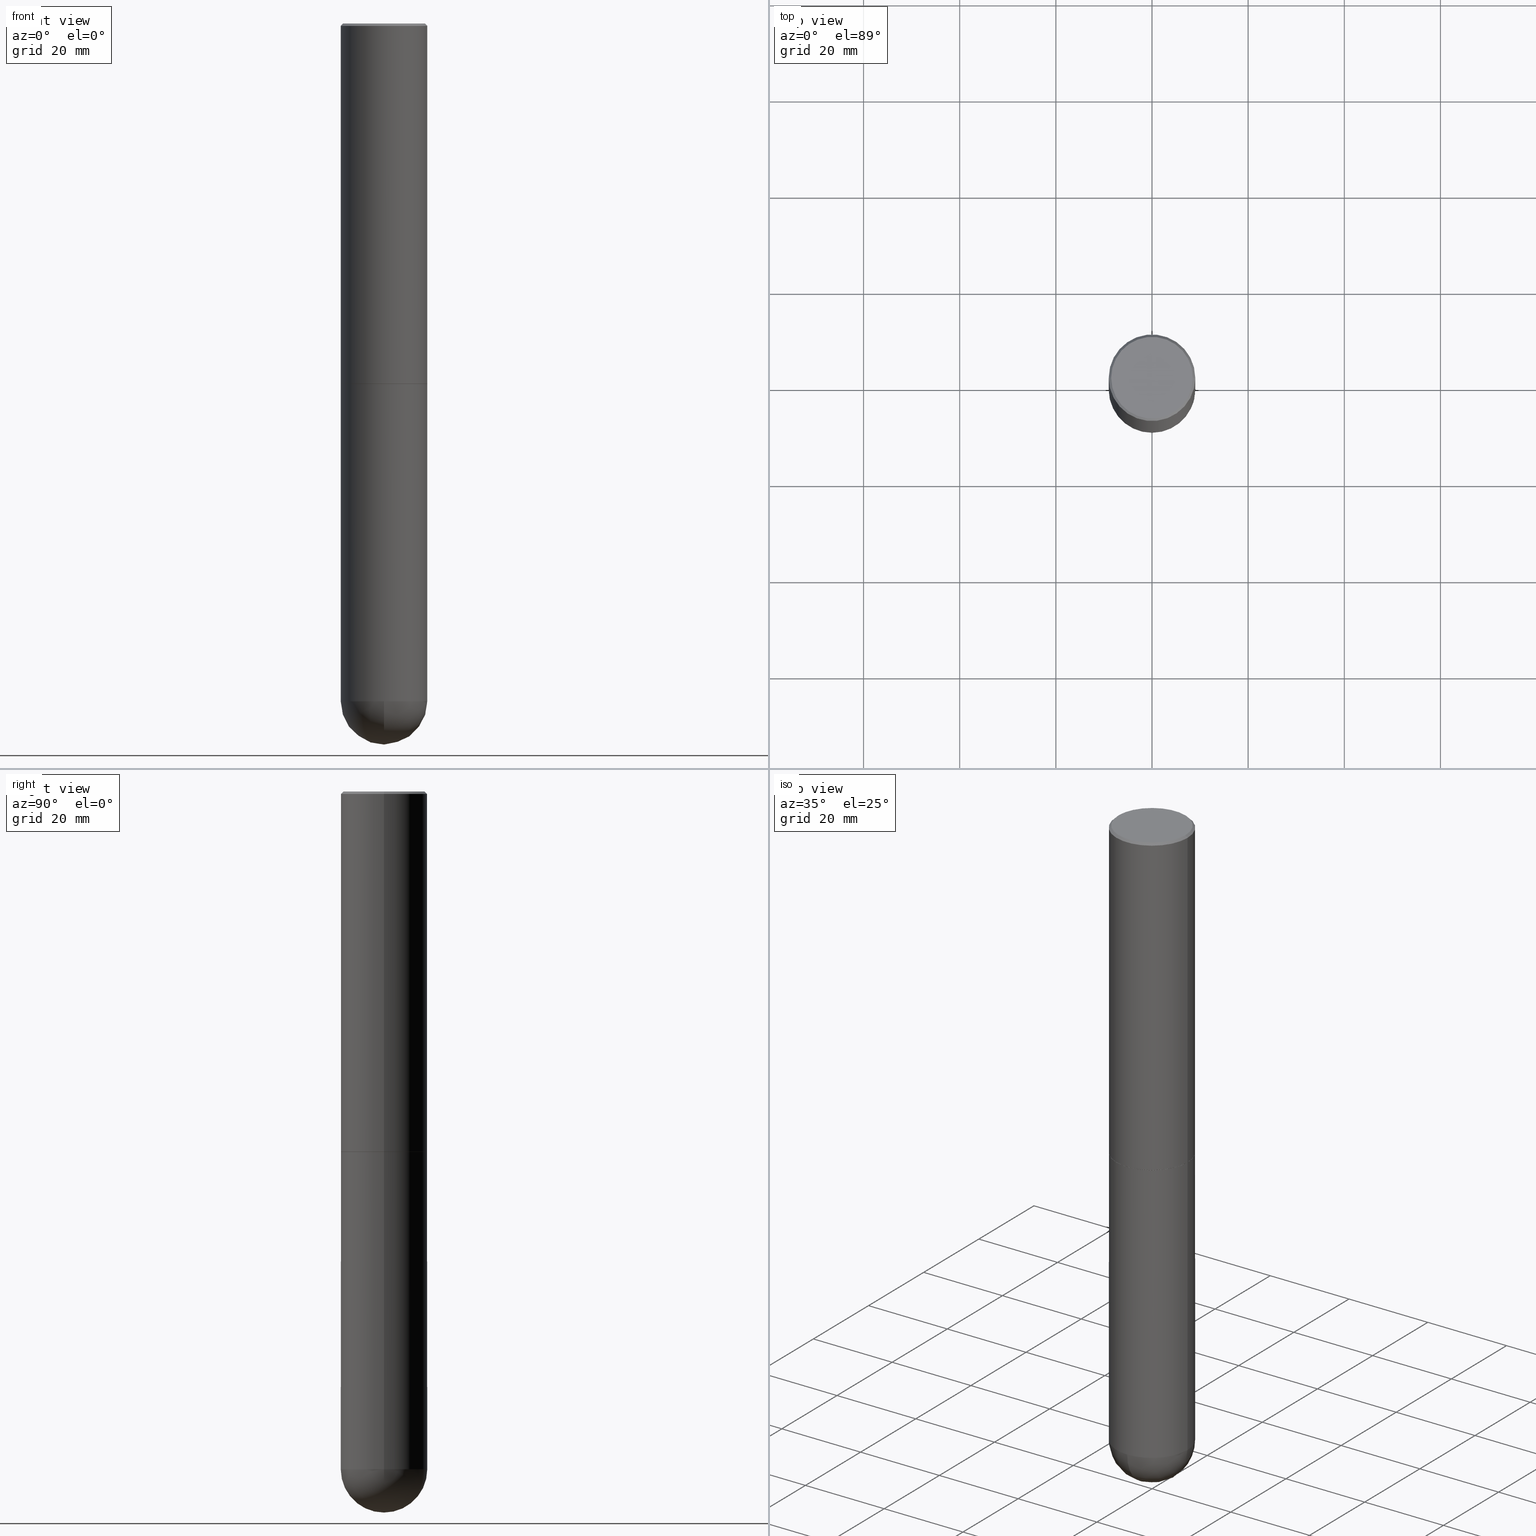
[diagram: canonical four-view strip — front | top / right | iso, engineering-drawing reading convention]
A machine part, canonical four-view strip (front | top / right | iso — engineering-drawing reading convention). The complete STEP part file that produces these views, byte-faithful:
ISO-10303-21;
HEADER;
FILE_DESCRIPTION (( 'STEP AP203' ),
    '1' );
FILE_NAME ('43576.STEP',
    '2024-04-10T11:44:28',
    ( '' ),
    ( '' ),
    'SwSTEP 2.0',
    'SolidWorks 2023',
    '' );
FILE_SCHEMA (( 'CONFIG_CONTROL_DESIGN' ));
ENDSEC;

DATA;
#1 = DIRECTION ( 'NONE',  ( 1.000000000000000000, -6.982962677686267499E-15, 0.000000000000000000 ) ) ;
#2 = PERSON ( 'UNSPECIFIED', 'UNSPECIFIED', 'UNSPECIFIED', ('UNSPECIFIED'), ('UNSPECIFIED'), ('UNSPECIFIED') ) ;
#3 = DIRECTION ( 'NONE',  ( -2.445468806185136597E-29, 3.491481338843145583E-15, 1.000000000000000000 ) ) ;
#4 = LINE ( 'NONE', #139, #360 ) ;
#5 = SPHERICAL_SURFACE ( 'NONE', #59, 0.3543500000000002204 ) ;
#6 = DATE_AND_TIME ( #383, #338 ) ;
#7 = EDGE_LOOP ( 'NONE', ( #183, #77, #286, #282 ) ) ;
#8 = DIRECTION ( 'NONE',  ( -2.445468806185136597E-29, 3.491481338843145583E-15, 1.000000000000000000 ) ) ;
#9 = DIRECTION ( 'NONE',  ( -2.445468806185136597E-29, 3.491481338843145583E-15, 1.000000000000000000 ) ) ;
#10 = EDGE_CURVE ( 'NONE', #167, #61, #248, .T. ) ;
#11 = CLOSED_SHELL ( 'NONE', ( #305, #307, #117, #19, #82, #306, #353, #162 ) ) ;
#12 = AXIS2_PLACEMENT_3D ( 'NONE', #386, #255, #37 ) ;
#13 = CARTESIAN_POINT ( 'NONE',  ( -0.3343499999999999250, 2.369668384672834141E-15, 2.561107494058601869E-17 ) ) ;
#14 = LINE ( 'NONE', #73, #309 ) ;
#15 = APPROVAL_STATUS ( 'not_yet_approved' ) ;
#16 = CARTESIAN_POINT ( 'NONE',  ( 0.3543499999999999983, -2.500847092287205690E-15, -0.02000000000000008021 ) ) ;
#17 = EDGE_LOOP ( 'NONE', ( #172, #235, #113, #323 ) ) ;
#18 = ORIENTED_EDGE ( 'NONE', *, *, #241, .T. ) ;
#19 = ADVANCED_FACE ( 'NONE', ( #251 ), #180, .T. ) ;
#20 = DIRECTION ( 'NONE',  ( -2.445468806185136597E-29, 3.491481338843145583E-15, 1.000000000000000000 ) ) ;
#21 = VECTOR ( 'NONE', #300, 39.37007874015748143 ) ;
#22 = ORIENTED_EDGE ( 'NONE', *, *, #83, .T. ) ;
#23 = EDGE_LOOP ( 'NONE', ( #239, #358 ) ) ;
#24 = EDGE_CURVE ( 'NONE', #276, #384, #407, .T. ) ;
#25 = AXIS2_PLACEMENT_3D ( 'NONE', #266, #3, #240 ) ;
#26 = PRODUCT_DEFINITION_FORMATION_WITH_SPECIFIED_SOURCE ( 'ANY', '', #318, .NOT_KNOWN. ) ;
#27 = PERSON_AND_ORGANIZATION ( #2, #118 ) ;
#28 = CIRCLE ( 'NONE', #337, 0.3533499999999999974 ) ;
#29 = CARTESIAN_POINT ( 'NONE',  ( 7.220735744022853640E-29, -1.030929694920215659E-14, -2.952700000000000546 ) ) ;
#30 = CARTESIAN_POINT ( 'NONE',  ( 2.474412824838200480E-15, 0.3543499999999896732, -2.952700000000000990 ) ) ;
#31 = EDGE_LOOP ( 'NONE', ( #18, #308, #124, #380, #412 ) ) ;
#32 = DIRECTION ( 'NONE',  ( -7.105427357601001070E-15, -1.000000000000000000, 0.000000000000000000 ) ) ;
#33 = DIRECTION ( 'NONE',  ( -1.000000000000000000, 6.982962677686266711E-15, 0.000000000000000000 ) ) ;
#34 = FACE_OUTER_BOUND ( 'NONE', #296, .T. ) ;
#35 = CIRCLE ( 'NONE', #75, 0.3543499999999999428 ) ;
#36 = CIRCLE ( 'NONE', #271, 0.3543499999999999428 ) ;
#37 = DIRECTION ( 'NONE',  ( 1.000000000000000000, -6.982962677686266711E-15, 4.876176775795935793E-29 ) ) ;
#38 = CARTESIAN_POINT ( 'NONE',  ( 0.3533499999999999974, -1.277672681136259888E-14, -2.952700000000000546 ) ) ;
#39 = DIRECTION ( 'NONE',  ( -2.445468806185136597E-29, 3.491481338843145583E-15, 1.000000000000000000 ) ) ;
#40 = DIRECTION ( 'NONE',  ( -2.445468806185136597E-29, 3.491481338843145583E-15, 1.000000000000000000 ) ) ;
#41 = CARTESIAN_POINT ( 'NONE',  ( -0.3543499999999999983, 2.404583198061265396E-15, -0.02000000000000008021 ) ) ;
#42 = VERTEX_POINT ( 'NONE', #93 ) ;
#43 = CC_DESIGN_DATE_AND_TIME_ASSIGNMENT ( #116, #79, ( #198 ) ) ;
#44 = APPROVAL_DATE_TIME ( #6, #352 ) ;
#45 = CARTESIAN_POINT ( 'NONE',  ( 1.357516416345461774E-28, -1.938173663411912545E-14, -5.551149999999999807 ) ) ;
#46 = AXIS2_PLACEMENT_3D ( 'NONE', #127, #178, #32 ) ;
#47 = FACE_OUTER_BOUND ( 'NONE', #357, .T. ) ;
#48 = EDGE_LOOP ( 'NONE', ( #314, #382, #149, #51 ) ) ;
#49 = ORIENTED_EDGE ( 'NONE', *, *, #83, .F. ) ;
#50 = EDGE_CURVE ( 'NONE', #292, #328, #52, .T. ) ;
#51 = ORIENTED_EDGE ( 'NONE', *, *, #112, .T. ) ;
#52 = CIRCLE ( 'NONE', #244, 0.3343499999999999250 ) ;
#53 = AXIS2_PLACEMENT_3D ( 'NONE', #109, #321, #389 ) ;
#54 = EDGE_CURVE ( 'NONE', #167, #179, #28, .T. ) ;
#55 = VERTEX_POINT ( 'NONE', #374 ) ;
#56 = EDGE_CURVE ( 'NONE', #292, #339, #99, .T. ) ;
#57 =( LENGTH_UNIT ( ) NAMED_UNIT ( * ) SI_UNIT ( $, .METRE. ) );
#58 = EDGE_LOOP ( 'NONE', ( #404, #262, #140, #299 ) ) ;
#59 = AXIS2_PLACEMENT_3D ( 'NONE', #279, #344, #60 ) ;
#60 = DIRECTION ( 'NONE',  ( 6.982962677686265922E-15, 1.000000000000000000, -3.083784951222533328E-15 ) ) ;
#61 = VERTEX_POINT ( 'NONE', #320 ) ;
#62 = VERTEX_POINT ( 'NONE', #128 ) ;
#63 = APPROVAL ( #208, 'UNSPECIFIED' ) ;
#64 =( CONVERSION_BASED_UNIT ( 'INCH', #129 ) LENGTH_UNIT ( ) NAMED_UNIT ( #249 ) );
#65 = ORIENTED_EDGE ( 'NONE', *, *, #272, .T. ) ;
#66 =( NAMED_UNIT ( * ) PLANE_ANGLE_UNIT ( ) SI_UNIT ( $, .RADIAN. ) );
#67 = DIRECTION ( 'NONE',  ( 2.445468806185136597E-29, -3.491481338843145583E-15, -1.000000000000000000 ) ) ;
#68 = CIRCLE ( 'NONE', #25, 0.3543499999999999983 ) ;
#69 = EDGE_CURVE ( 'NONE', #62, #61, #150, .T. ) ;
#70 = EDGE_CURVE ( 'NONE', #280, #219, #35, .T. ) ;
#71 = LINE ( 'NONE', #351, #88 ) ;
#72 = CARTESIAN_POINT ( 'NONE',  ( -0.3543499999999999428, -1.232770860749472642E-14, -5.551149999999999807 ) ) ;
#73 = CARTESIAN_POINT ( 'NONE',  ( 0.3543499999999999983, -2.474412824838128694E-15, 1.727873240503289749E-29 ) ) ;
#74 = CARTESIAN_POINT ( 'NONE',  ( 4.890937612370293302E-31, -6.982962677686318726E-17, -0.02000000000000008021 ) ) ;
#75 = AXIS2_PLACEMENT_3D ( 'NONE', #302, #20, #392 ) ;
#76 = CARTESIAN_POINT ( 'NONE',  ( 1.357516416345461774E-28, -1.938173663411912545E-14, -5.551149999999999807 ) ) ;
#77 = ORIENTED_EDGE ( 'NONE', *, *, #146, .T. ) ;
#78 = ORIENTED_EDGE ( 'NONE', *, *, #69, .T. ) ;
#79 = DATE_TIME_ROLE ( 'creation_date' ) ;
#80 = ORIENTED_EDGE ( 'NONE', *, *, #54, .T. ) ;
#81 = EDGE_CURVE ( 'NONE', #324, #55, #114, .T. ) ;
#82 = ADVANCED_FACE ( 'NONE', ( #237 ), #270, .T. ) ;
#83 = EDGE_CURVE ( 'NONE', #62, #42, #4, .T. ) ;
#84 = CC_DESIGN_PERSON_AND_ORGANIZATION_ASSIGNMENT ( #27, #403, ( #26 ) ) ;
#85 = SHAPE_DEFINITION_REPRESENTATION ( #379, #212 ) ;
#86 = PERSON_AND_ORGANIZATION_ROLE ( 'design_supplier' ) ;
#87 = AXIS2_PLACEMENT_3D ( 'NONE', #229, #354, #349 ) ;
#88 = VECTOR ( 'NONE', #298, 39.37007874015748143 ) ;
#89 = COORDINATED_UNIVERSAL_TIME_OFFSET ( 5, 0, .BEHIND. ) ;
#90 = DIRECTION ( 'NONE',  ( 1.000000000000000000, -6.982962677686265922E-15, 4.876176775795935793E-29 ) ) ;
#91 = DIRECTION ( 'NONE',  ( -2.445468806185136597E-29, 3.491481338843145583E-15, 1.000000000000000000 ) ) ;
#92 = FACE_OUTER_BOUND ( 'NONE', #7, .T. ) ;
#93 = CARTESIAN_POINT ( 'NONE',  ( 0.3543499999999999983, -2.500847092287205690E-15, -0.02000000000000008021 ) ) ;
#94 = DIRECTION ( 'NONE',  ( -2.445468806185136877E-29, 3.491481338843145188E-15, 1.000000000000000000 ) ) ;
#95 = APPROVAL_STATUS ( 'not_yet_approved' ) ;
#96 = AXIS2_PLACEMENT_3D ( 'NONE', #160, #102, #230 ) ;
#97 = ORIENTED_EDGE ( 'NONE', *, *, #10, .F. ) ;
#98 = CARTESIAN_POINT ( 'NONE',  ( 7.220735744022853640E-29, -1.030929694920215659E-14, -2.952700000000000546 ) ) ;
#99 = LINE ( 'NONE', #228, #147 ) ;
#100 = LINE ( 'NONE', #16, #21 ) ;
#101 = SPHERICAL_SURFACE ( 'NONE', #87, 0.3543500000000002204 ) ;
#102 = DIRECTION ( 'NONE',  ( -2.445468806185136597E-29, 3.491481338843145583E-15, 1.000000000000000000 ) ) ;
#103 = DIRECTION ( 'NONE',  ( -2.445468806185136597E-29, 3.491481338843145583E-15, 1.000000000000000000 ) ) ;
#104 = APPLICATION_CONTEXT ( 'configuration controlled 3d designs of mechanical parts and assemblies' ) ;
#105 = DIRECTION ( 'NONE',  ( -2.438088387897960049E-29, 3.491481338843145188E-15, 1.000000000000000000 ) ) ;
#106 = ORIENTED_EDGE ( 'NONE', *, *, #215, .T. ) ;
#107 = DIRECTION ( 'NONE',  ( 1.000000000000000000, -6.982962677686261189E-15, 0.000000000000000000 ) ) ;
#108 = DIRECTION ( 'NONE',  ( 6.982962677686265133E-15, 1.000000000000000000, 0.000000000000000000 ) ) ;
#109 = CARTESIAN_POINT ( 'NONE',  ( 0.000000000000000000, 0.000000000000000000, 0.000000000000000000 ) ) ;
#110 = DIRECTION ( 'NONE',  ( 1.000000000000000000, -6.982962677686267499E-15, 0.000000000000000000 ) ) ;
#111 = CARTESIAN_POINT ( 'NONE',  ( -2.517808184165781285E-15, -0.3543500000000196493, -5.551149999999998919 ) ) ;
#112 = EDGE_CURVE ( 'NONE', #339, #42, #361, .T. ) ;
#113 = ORIENTED_EDGE ( 'NONE', *, *, #69, .F. ) ;
#114 = CIRCLE ( 'NONE', #254, 0.3543500000000002204 ) ;
#115 =( GEOMETRIC_REPRESENTATION_CONTEXT ( 3 ) GLOBAL_UNCERTAINTY_ASSIGNED_CONTEXT ( ( #166 ) ) GLOBAL_UNIT_ASSIGNED_CONTEXT ( ( #64, #66, #137 ) ) REPRESENTATION_CONTEXT ( 'NONE', 'WORKASPACE' ) );
#116 = DATE_AND_TIME ( #316, #242 ) ;
#117 = ADVANCED_FACE ( 'NONE', ( #122 ), #317, .T. ) ;
#118 = ORGANIZATION ( 'UNSPECIFIED', 'UNSPECIFIED', '' ) ;
#119 = DATE_AND_TIME ( #277, #362 ) ;
#120 = AXIS2_PLACEMENT_3D ( 'NONE', #261, #387, #144 ) ;
#121 = APPROVAL_PERSON_ORGANIZATION ( #207, #63, #363 ) ;
#122 = FACE_OUTER_BOUND ( 'NONE', #58, .T. ) ;
#123 = FACE_OUTER_BOUND ( 'NONE', #23, .T. ) ;
#124 = ORIENTED_EDGE ( 'NONE', *, *, #24, .F. ) ;
#125 = APPROVAL ( #95, 'UNSPECIFIED' ) ;
#126 = PERSON_AND_ORGANIZATION ( #2, #118 ) ;
#127 = CARTESIAN_POINT ( 'NONE',  ( 1.324404438554073486E-28, -1.985591900225917417E-14, -5.551149999999999807 ) ) ;
#128 = CARTESIAN_POINT ( 'NONE',  ( 0.3543500000000004424, -1.278021829270144662E-14, -2.951700000000000212 ) ) ;
#129 = LENGTH_MEASURE_WITH_UNIT ( LENGTH_MEASURE( 0.02539999999999999897 ), #57 );
#130 = VERTEX_POINT ( 'NONE', #217 ) ;
#131 = PERSON_AND_ORGANIZATION ( #2, #118 ) ;
#132 = DIRECTION ( 'NONE',  ( -2.445468806185136877E-29, 3.491481338843145188E-15, 1.000000000000000000 ) ) ;
#133 = VECTOR ( 'NONE', #94, 39.37007874015748143 ) ;
#134 = CARTESIAN_POINT ( 'NONE',  ( 7.220735744022853640E-29, -1.030929694920215659E-14, -2.952700000000000546 ) ) ;
#135 = DIRECTION ( 'NONE',  ( -2.445468806185136597E-29, 3.491481338843145583E-15, 1.000000000000000000 ) ) ;
#136 = CC_DESIGN_DATE_AND_TIME_ASSIGNMENT ( #334, #369, ( #275 ) ) ;
#137 =( NAMED_UNIT ( * ) SI_UNIT ( $, .STERADIAN. ) SOLID_ANGLE_UNIT ( ) );
#138 = DIRECTION ( 'NONE',  ( -0.7071067811865715536, 7.493145998870439357E-15, 0.7071067811865232589 ) ) ;
#139 = CARTESIAN_POINT ( 'NONE',  ( 0.3543500000000002204, -2.474412824838130272E-15, 1.727873240503290870E-29 ) ) ;
#140 = ORIENTED_EDGE ( 'NONE', *, *, #187, .T. ) ;
#141 = CIRCLE ( 'NONE', #304, 0.3543499999999999983 ) ;
#142 = PERSON_AND_ORGANIZATION ( #2, #118 ) ;
#143 = ORIENTED_EDGE ( 'NONE', *, *, #215, .F. ) ;
#144 = DIRECTION ( 'NONE',  ( 1.000000000000000000, -6.982962677686261189E-15, 0.000000000000000000 ) ) ;
#145 = COORDINATED_UNIVERSAL_TIME_OFFSET ( 5, 0, .BEHIND. ) ;
#146 = EDGE_CURVE ( 'NONE', #324, #219, #246, .T. ) ;
#147 = VECTOR ( 'NONE', #345, 39.37007874015748143 ) ;
#148 = PRODUCT_RELATED_PRODUCT_CATEGORY ( 'detail', '', ( #318 ) ) ;
#149 = ORIENTED_EDGE ( 'NONE', *, *, #56, .T. ) ;
#150 = CIRCLE ( 'NONE', #213, 0.3543500000000004424 ) ;
#151 = EDGE_CURVE ( 'NONE', #179, #167, #274, .T. ) ;
#152 = CARTESIAN_POINT ( 'NONE',  ( 4.890937612370293302E-31, -6.982962677686318726E-17, -0.02000000000000008021 ) ) ;
#153 = APPROVAL_DATE_TIME ( #119, #63 ) ;
#154 = CIRCLE ( 'NONE', #206, 0.3343499999999999250 ) ;
#155 = DIRECTION ( 'NONE',  ( 1.000000000000000000, -6.982962677686266711E-15, 4.876176775795935793E-29 ) ) ;
#156 = DIRECTION ( 'NONE',  ( 1.000000000000000000, -6.982962677686267499E-15, 4.875777752381879149E-29 ) ) ;
#157 = APPROVAL_DATE_TIME ( #158, #125 ) ;
#158 = DATE_AND_TIME ( #340, #202 ) ;
#159 = CARTESIAN_POINT ( 'NONE',  ( -0.3543499999999999983, -1.232770860749472484E-14, -2.952700000000000102 ) ) ;
#160 = CARTESIAN_POINT ( 'NONE',  ( 7.220735744022852519E-29, -1.030929694920215502E-14, -2.952700000000000102 ) ) ;
#161 = APPLICATION_PROTOCOL_DEFINITION ( 'international standard', 'config_control_design', 1994, #104 ) ;
#162 = ADVANCED_FACE ( 'NONE', ( #123 ), #341, .F. ) ;
#163 = COORDINATED_UNIVERSAL_TIME_OFFSET ( 5, 0, .BEHIND. ) ;
#164 = DIRECTION ( 'NONE',  ( -2.445468806185136597E-29, 3.491481338843145583E-15, 1.000000000000000000 ) ) ;
#165 = ORIENTED_EDGE ( 'NONE', *, *, #81, .T. ) ;
#166 = UNCERTAINTY_MEASURE_WITH_UNIT (LENGTH_MEASURE( 1.000000000000000082E-05 ), #64, 'distance_accuracy_value', 'NONE');
#167 = VERTEX_POINT ( 'NONE', #227 ) ;
#168 = CARTESIAN_POINT ( 'NONE',  ( 1.324404438554073486E-28, -1.985591900225917417E-14, -5.551149999999999807 ) ) ;
#169 = CC_DESIGN_APPROVAL ( #352, ( #198 ) ) ;
#170 = PLANE ( 'NONE',  #214 ) ;
#171 = ADVANCED_FACE ( 'NONE', ( #377 ), #101, .T. ) ;
#172 = ORIENTED_EDGE ( 'NONE', *, *, #151, .T. ) ;
#173 = CIRCLE ( 'NONE', #231, 0.3543500000000004424 ) ;
#174 = ORIENTED_EDGE ( 'NONE', *, *, #211, .T. ) ;
#175 = EDGE_CURVE ( 'NONE', #179, #62, #347, .T. ) ;
#176 = VECTOR ( 'NONE', #138, 39.37007874015748854 ) ;
#177 = APPROVAL_PERSON_ORGANIZATION ( #285, #352, #293 ) ;
#178 = DIRECTION ( 'NONE',  ( -1.000000000000000000, 7.105427357601001070E-15, -4.926315508542082329E-29 ) ) ;
#179 = VERTEX_POINT ( 'NONE', #203 ) ;
#180 = CONICAL_SURFACE ( 'NONE', #269, 0.3543499999999999983, 0.7853981633974471688 ) ;
#181 = AXIS2_PLACEMENT_3D ( 'NONE', #98, #290, #1 ) ;
#182 = CARTESIAN_POINT ( 'NONE',  ( 2.334753571284402492E-15, 0.3343499999999999250, -1.154571248171904305E-15 ) ) ;
#183 = ORIENTED_EDGE ( 'NONE', *, *, #81, .F. ) ;
#184 = CARTESIAN_POINT ( 'NONE',  ( 7.220735744022852519E-29, -1.030929694920215502E-14, -2.952700000000000102 ) ) ;
#185 = DIRECTION ( 'NONE',  ( 1.000000000000000000, -6.982962677686267499E-15, 0.000000000000000000 ) ) ;
#186 = COORDINATED_UNIVERSAL_TIME_OFFSET ( 5, 0, .BEHIND. ) ;
#187 = EDGE_CURVE ( 'NONE', #42, #339, #68, .T. ) ;
#188 = AXIS2_PLACEMENT_3D ( 'NONE', #152, #364, #223 ) ;
#189 = AXIS2_PLACEMENT_3D ( 'NONE', #226, #135, #376 ) ;
#190 = AXIS2_PLACEMENT_3D ( 'NONE', #197, #297, #110 ) ;
#191 = PERSON_AND_ORGANIZATION ( #2, #118 ) ;
#192 = ORIENTED_EDGE ( 'NONE', *, *, #151, .F. ) ;
#193 = DIRECTION ( 'NONE',  ( 1.000000000000000000, -6.982962677686267499E-15, 4.875777752381879149E-29 ) ) ;
#194 = MECHANICAL_CONTEXT ( 'NONE', #260, 'mechanical' ) ;
#195 = ORIENTED_EDGE ( 'NONE', *, *, #70, .T. ) ;
#196 = MANIFOLD_SOLID_BREP ( 'Body-Move/Copy2[1]', #385 ) ;
#197 = CARTESIAN_POINT ( 'NONE',  ( 7.220735744022853640E-29, -1.030929694920215659E-14, -2.952700000000000546 ) ) ;
#198 = PRODUCT_DEFINITION ( 'UNKNOWN', '', #26, #209 ) ;
#199 = PERSON_AND_ORGANIZATION_ROLE ( 'design_owner' ) ;
#200 = CARTESIAN_POINT ( 'NONE',  ( 0.3343499999999999250, -2.397327298921058709E-15, 2.561107494061901218E-17 ) ) ;
#201 = ORIENTED_EDGE ( 'NONE', *, *, #291, .F. ) ;
#202 = LOCAL_TIME ( 7, 44, 28.00000000000000000, #220 ) ;
#203 = CARTESIAN_POINT ( 'NONE',  ( 0.3533499999999999974, -1.277672681136259888E-14, -2.952700000000000546 ) ) ;
#204 = ORIENTED_EDGE ( 'NONE', *, *, #268, .F. ) ;
#205 = CC_DESIGN_PERSON_AND_ORGANIZATION_ASSIGNMENT ( #142, #346, ( #198 ) ) ;
#206 = AXIS2_PLACEMENT_3D ( 'NONE', #325, #381, #193 ) ;
#207 = PERSON_AND_ORGANIZATION ( #2, #118 ) ;
#208 = APPROVAL_STATUS ( 'not_yet_approved' ) ;
#209 = DESIGN_CONTEXT ( 'detailed design', #104, 'design' ) ;
#210 = CC_DESIGN_PERSON_AND_ORGANIZATION_ASSIGNMENT ( #405, #250, ( #275 ) ) ;
#211 = EDGE_CURVE ( 'NONE', #219, #130, #303, .T. ) ;
#212 = ADVANCED_BREP_SHAPE_REPRESENTATION ( '43576', ( #196, #329, #53 ), #115 ) ;
#213 = AXIS2_PLACEMENT_3D ( 'NONE', #411, #164, #243 ) ;
#214 = AXIS2_PLACEMENT_3D ( 'NONE', #30, #224, #322 ) ;
#215 = EDGE_CURVE ( 'NONE', #61, #62, #173, .T. ) ;
#216 = CALENDAR_DATE ( 2024, 10, 4 ) ;
#217 = CARTESIAN_POINT ( 'NONE',  ( 0.3543499999999999428, -1.731992961649876932E-14, -5.551149999999999807 ) ) ;
#218 = EDGE_LOOP ( 'NONE', ( #396, #195, #174, #350, #201 ) ) ;
#219 = VERTEX_POINT ( 'NONE', #111 ) ;
#220 = COORDINATED_UNIVERSAL_TIME_OFFSET ( 5, 0, .BEHIND. ) ;
#221 = AXIS2_PLACEMENT_3D ( 'NONE', #74, #91, #278 ) ;
#222 = LOCAL_TIME ( 7, 44, 28.00000000000000000, #89 ) ;
#223 = DIRECTION ( 'NONE',  ( -1.000000000000000000, 6.982962677686266711E-15, 0.000000000000000000 ) ) ;
#224 = DIRECTION ( 'NONE',  ( 2.438088387897960049E-29, -3.491481338843145188E-15, -1.000000000000000000 ) ) ;
#225 = ORIENTED_EDGE ( 'NONE', *, *, #112, .F. ) ;
#226 = CARTESIAN_POINT ( 'NONE',  ( 0.000000000000000000, 0.000000000000000000, 0.000000000000000000 ) ) ;
#227 = CARTESIAN_POINT ( 'NONE',  ( -0.3533499999999999974, -7.793295738045619809E-15, -2.952700000000000546 ) ) ;
#228 = CARTESIAN_POINT ( 'NONE',  ( -0.3543499999999999983, 2.404583198061265396E-15, -0.02000000000000008021 ) ) ;
#229 = CARTESIAN_POINT ( 'NONE',  ( 1.324404438554073486E-28, -1.985591900225917417E-14, -5.551149999999999807 ) ) ;
#230 = DIRECTION ( 'NONE',  ( 1.000000000000000000, -6.982962677686265922E-15, 0.000000000000000000 ) ) ;
#231 = AXIS2_PLACEMENT_3D ( 'NONE', #294, #395, #356 ) ;
#232 = AXIS2_PLACEMENT_3D ( 'NONE', #366, #40, #155 ) ;
#233 = DIRECTION ( 'NONE',  ( 1.000000000000000000, -6.982962677686261189E-15, 0.000000000000000000 ) ) ;
#234 = ORIENTED_EDGE ( 'NONE', *, *, #272, .F. ) ;
#235 = ORIENTED_EDGE ( 'NONE', *, *, #10, .T. ) ;
#236 = EDGE_CURVE ( 'NONE', #328, #292, #154, .T. ) ;
#237 = FACE_OUTER_BOUND ( 'NONE', #252, .T. ) ;
#238 = FACE_OUTER_BOUND ( 'NONE', #257, .T. ) ;
#239 = ORIENTED_EDGE ( 'NONE', *, *, #50, .T. ) ;
#240 = DIRECTION ( 'NONE',  ( 1.000000000000000000, -6.982962677686266711E-15, 0.000000000000000000 ) ) ;
#241 = EDGE_CURVE ( 'NONE', #55, #280, #36, .T. ) ;
#242 = LOCAL_TIME ( 7, 44, 28.00000000000000000, #186 ) ;
#243 = DIRECTION ( 'NONE',  ( 1.000000000000000000, -6.982962677686268288E-15, 0.000000000000000000 ) ) ;
#244 = AXIS2_PLACEMENT_3D ( 'NONE', #258, #284, #156 ) ;
#245 = ORIENTED_EDGE ( 'NONE', *, *, #187, .F. ) ;
#246 = CIRCLE ( 'NONE', #46, 0.3543500000000002204 ) ;
#247 = AXIS2_PLACEMENT_3D ( 'NONE', #289, #105, #90 ) ;
#248 = LINE ( 'NONE', #378, #176 ) ;
#249 = DIMENSIONAL_EXPONENTS ( 1.000000000000000000, 0.000000000000000000, 0.000000000000000000, 0.000000000000000000, 0.000000000000000000, 0.000000000000000000, 0.000000000000000000 ) ;
#250 = PERSON_AND_ORGANIZATION_ROLE ( 'classification_officer' ) ;
#251 = FACE_OUTER_BOUND ( 'NONE', #48, .T. ) ;
#252 = EDGE_LOOP ( 'NONE', ( #234, #106, #22, #225 ) ) ;
#253 = SECURITY_CLASSIFICATION_LEVEL ( 'unclassified' ) ;
#254 = AXIS2_PLACEMENT_3D ( 'NONE', #168, #388, #108 ) ;
#255 = DIRECTION ( 'NONE',  ( -2.445468806185136597E-29, 3.491481338843145583E-15, 1.000000000000000000 ) ) ;
#256 = DIRECTION ( 'NONE',  ( -2.445468806185136597E-29, 3.491481338843145583E-15, 1.000000000000000000 ) ) ;
#257 = EDGE_LOOP ( 'NONE', ( #78, #65, #245, #49 ) ) ;
#258 = CARTESIAN_POINT ( 'NONE',  ( -6.263108486011318528E-46, 8.942059022282683748E-32, 2.561107494060246767E-17 ) ) ;
#259 = ORIENTED_EDGE ( 'NONE', *, *, #175, .T. ) ;
#260 = APPLICATION_CONTEXT ( 'configuration controlled 3d designs of mechanical parts and assemblies' ) ;
#261 = CARTESIAN_POINT ( 'NONE',  ( 1.357516416345461774E-28, -1.938173663411912545E-14, -5.551149999999999807 ) ) ;
#262 = ORIENTED_EDGE ( 'NONE', *, *, #313, .T. ) ;
#263 = FACE_OUTER_BOUND ( 'NONE', #31, .T. ) ;
#264 = CONICAL_SURFACE ( 'NONE', #190, 0.3533499999999999974, 0.7853981633974824739 ) ;
#265 = CYLINDRICAL_SURFACE ( 'NONE', #12, 0.3543499999999999983 ) ;
#266 = CARTESIAN_POINT ( 'NONE',  ( 4.890937612370293302E-31, -6.982962677686318726E-17, -0.02000000000000008021 ) ) ;
#267 = DIRECTION ( 'NONE',  ( 1.000000000000000000, -6.982962677686266711E-15, 4.876176775795935793E-29 ) ) ;
#268 = EDGE_CURVE ( 'NONE', #130, #55, #408, .T. ) ;
#269 = AXIS2_PLACEMENT_3D ( 'NONE', #367, #67, #33 ) ;
#270 = CYLINDRICAL_SURFACE ( 'NONE', #399, 0.3543500000000002204 ) ;
#271 = AXIS2_PLACEMENT_3D ( 'NONE', #76, #9, #107 ) ;
#272 = EDGE_CURVE ( 'NONE', #61, #339, #71, .T. ) ;
#273 = EDGE_CURVE ( 'NONE', #130, #276, #14, .T. ) ;
#274 = CIRCLE ( 'NONE', #330, 0.3533499999999999974 ) ;
#275 = SECURITY_CLASSIFICATION ( '', '', #253 ) ;
#276 = VERTEX_POINT ( 'NONE', #391 ) ;
#277 = CALENDAR_DATE ( 2024, 10, 4 ) ;
#278 = DIRECTION ( 'NONE',  ( 1.000000000000000000, -6.982962677686266711E-15, 0.000000000000000000 ) ) ;
#279 = CARTESIAN_POINT ( 'NONE',  ( 1.324404438554073486E-28, -1.985591900225917417E-14, -5.551149999999999807 ) ) ;
#280 = VERTEX_POINT ( 'NONE', #72 ) ;
#281 = CC_DESIGN_PERSON_AND_ORGANIZATION_ASSIGNMENT ( #126, #86, ( #26 ) ) ;
#282 = ORIENTED_EDGE ( 'NONE', *, *, #241, .F. ) ;
#283 = DIRECTION ( 'NONE',  ( -2.445468806185136597E-29, 3.491481338843145583E-15, 1.000000000000000000 ) ) ;
#284 = DIRECTION ( 'NONE',  ( -2.445468806185136597E-29, 3.491481338843145583E-15, 1.000000000000000000 ) ) ;
#285 = PERSON_AND_ORGANIZATION ( #2, #118 ) ;
#286 = ORIENTED_EDGE ( 'NONE', *, *, #70, .F. ) ;
#287 = CC_DESIGN_APPROVAL ( #125, ( #275 ) ) ;
#288 = DIRECTION ( 'NONE',  ( 1.000000000000000000, -6.982962677686267499E-15, 0.000000000000000000 ) ) ;
#289 = CARTESIAN_POINT ( 'NONE',  ( 7.220735744022853640E-29, -1.030929694920215659E-14, -2.952700000000000546 ) ) ;
#290 = DIRECTION ( 'NONE',  ( -2.445468806185136597E-29, 3.491481338843145583E-15, 1.000000000000000000 ) ) ;
#291 = EDGE_CURVE ( 'NONE', #384, #276, #141, .T. ) ;
#292 = VERTEX_POINT ( 'NONE', #13 ) ;
#293 = APPROVAL_ROLE ( '' ) ;
#294 = CARTESIAN_POINT ( 'NONE',  ( 7.218290275216666916E-29, -1.030580546786331359E-14, -2.951700000000000212 ) ) ;
#295 = ADVANCED_FACE ( 'NONE', ( #263 ), #265, .T. ) ;
#296 = EDGE_LOOP ( 'NONE', ( #192, #375 ) ) ;
#297 = DIRECTION ( 'NONE',  ( -2.445468806185136597E-29, 3.491481338843145583E-15, 1.000000000000000000 ) ) ;
#298 = DIRECTION ( 'NONE',  ( -2.445468806185136877E-29, 3.491481338843145188E-15, 1.000000000000000000 ) ) ;
#299 = ORIENTED_EDGE ( 'NONE', *, *, #56, .F. ) ;
#300 = DIRECTION ( 'NONE',  ( 0.7071067811865466846, -7.319954787623252890E-15, -0.7071067811865483499 ) ) ;
#301 = DIRECTION ( 'NONE',  ( 0.7071067811865715536, -2.468850131082509496E-15, 0.7071067811865232589 ) ) ;
#302 = CARTESIAN_POINT ( 'NONE',  ( 1.357516416345461774E-28, -1.938173663411912545E-14, -5.551149999999999807 ) ) ;
#303 = CIRCLE ( 'NONE', #120, 0.3543499999999999428 ) ;
#304 = AXIS2_PLACEMENT_3D ( 'NONE', #184, #8, #315 ) ;
#305 = ADVANCED_FACE ( 'NONE', ( #372 ), #359, .T. ) ;
#306 = ADVANCED_FACE ( 'NONE', ( #410 ), #264, .T. ) ;
#307 = ADVANCED_FACE ( 'NONE', ( #238 ), #310, .T. ) ;
#308 = ORIENTED_EDGE ( 'NONE', *, *, #336, .T. ) ;
#309 = VECTOR ( 'NONE', #132, 39.37007874015748143 ) ;
#310 = CYLINDRICAL_SURFACE ( 'NONE', #189, 0.3543500000000002204 ) ;
#311 = DIRECTION ( 'NONE',  ( 2.438088387897960049E-29, -3.491481338843145188E-15, -1.000000000000000000 ) ) ;
#312 = ORIENTED_EDGE ( 'NONE', *, *, #146, .F. ) ;
#313 = EDGE_CURVE ( 'NONE', #328, #42, #100, .T. ) ;
#314 = ORIENTED_EDGE ( 'NONE', *, *, #313, .F. ) ;
#315 = DIRECTION ( 'NONE',  ( 1.000000000000000000, -6.982962677686265922E-15, 0.000000000000000000 ) ) ;
#316 = CALENDAR_DATE ( 2024, 10, 4 ) ;
#317 = CONICAL_SURFACE ( 'NONE', #188, 0.3543499999999999983, 0.7853981633974471688 ) ;
#318 = PRODUCT ( '43576', '43576', '', ( #194 ) ) ;
#319 = CYLINDRICAL_SURFACE ( 'NONE', #232, 0.3543499999999999983 ) ;
#320 = CARTESIAN_POINT ( 'NONE',  ( -0.3543500000000004424, -2.670009363154166740E-15, -2.951700000000000212 ) ) ;
#321 = DIRECTION ( 'NONE',  ( 0.000000000000000000, 0.000000000000000000, 1.000000000000000000 ) ) ;
#322 = DIRECTION ( 'NONE',  ( -1.000000000000000000, 6.982962677686265922E-15, -4.876176775795935793E-29 ) ) ;
#323 = ORIENTED_EDGE ( 'NONE', *, *, #175, .F. ) ;
#324 = VERTEX_POINT ( 'NONE', #326 ) ;
#325 = CARTESIAN_POINT ( 'NONE',  ( -6.263108486011318528E-46, 8.942059022282683748E-32, 2.561107494060246767E-17 ) ) ;
#326 = CARTESIAN_POINT ( 'NONE',  ( 1.412574766574097249E-28, -2.107142773501435227E-14, -5.905499999999999972 ) ) ;
#327 = AXIS2_PLACEMENT_3D ( 'NONE', #182, #311, #373 ) ;
#328 = VERTEX_POINT ( 'NONE', #200 ) ;
#329 = MANIFOLD_SOLID_BREP ( 'Body-Move/Copy2[2]', #11 ) ;
#330 = AXIS2_PLACEMENT_3D ( 'NONE', #29, #283, #185 ) ;
#331 = ADVANCED_FACE ( 'NONE', ( #47 ), #170, .F. ) ;
#332 = ORIENTED_EDGE ( 'NONE', *, *, #211, .F. ) ;
#333 = CC_DESIGN_SECURITY_CLASSIFICATION ( #275, ( #26 ) ) ;
#334 = DATE_AND_TIME ( #216, #222 ) ;
#335 = CC_DESIGN_PERSON_AND_ORGANIZATION_ASSIGNMENT ( #191, #199, ( #318 ) ) ;
#336 = EDGE_CURVE ( 'NONE', #280, #384, #343, .T. ) ;
#337 = AXIS2_PLACEMENT_3D ( 'NONE', #134, #256, #288 ) ;
#338 = LOCAL_TIME ( 7, 44, 28.00000000000000000, #145 ) ;
#339 = VERTEX_POINT ( 'NONE', #41 ) ;
#340 = CALENDAR_DATE ( 2024, 10, 4 ) ;
#341 = PLANE ( 'NONE',  #327 ) ;
#342 = ORIENTED_EDGE ( 'NONE', *, *, #24, .T. ) ;
#343 = LINE ( 'NONE', #368, #133 ) ;
#344 = DIRECTION ( 'NONE',  ( -1.000000000000000000, 6.982962677686265922E-15, -4.883557194083112340E-29 ) ) ;
#345 = DIRECTION ( 'NONE',  ( -0.7071067811865466846, 2.468850131082247989E-15, -0.7071067811865483499 ) ) ;
#346 = PERSON_AND_ORGANIZATION_ROLE ( 'creator' ) ;
#347 = LINE ( 'NONE', #38, #370 ) ;
#348 = APPROVAL_PERSON_ORGANIZATION ( #131, #125, #371 ) ;
#349 = DIRECTION ( 'NONE',  ( 6.982962677686265922E-15, 1.000000000000000000, -3.083784951222533328E-15 ) ) ;
#350 = ORIENTED_EDGE ( 'NONE', *, *, #273, .T. ) ;
#351 = CARTESIAN_POINT ( 'NONE',  ( -0.3543500000000002204, 2.517808184165916574E-15, -1.743024649231827187E-29 ) ) ;
#352 = APPROVAL ( #15, 'UNSPECIFIED' ) ;
#353 = ADVANCED_FACE ( 'NONE', ( #34 ), #409, .F. ) ;
#354 = DIRECTION ( 'NONE',  ( -1.000000000000000000, 6.982962677686265922E-15, -4.883557194083112340E-29 ) ) ;
#355 = DIRECTION ( 'NONE',  ( -2.445468806185136877E-29, 3.491481338843145188E-15, 1.000000000000000000 ) ) ;
#356 = DIRECTION ( 'NONE',  ( 1.000000000000000000, -6.982962677686268288E-15, 0.000000000000000000 ) ) ;
#357 = EDGE_LOOP ( 'NONE', ( #342, #406 ) ) ;
#358 = ORIENTED_EDGE ( 'NONE', *, *, #236, .T. ) ;
#359 = CONICAL_SURFACE ( 'NONE', #181, 0.3533499999999999974, 0.7853981633974824739 ) ;
#360 = VECTOR ( 'NONE', #355, 39.37007874015748143 ) ;
#361 = CIRCLE ( 'NONE', #221, 0.3543499999999999983 ) ;
#362 = LOCAL_TIME ( 7, 44, 28.00000000000000000, #163 ) ;
#363 = APPROVAL_ROLE ( '' ) ;
#364 = DIRECTION ( 'NONE',  ( 2.445468806185136597E-29, -3.491481338843145583E-15, -1.000000000000000000 ) ) ;
#365 = FACE_OUTER_BOUND ( 'NONE', #218, .T. ) ;
#366 = CARTESIAN_POINT ( 'NONE',  ( 0.000000000000000000, 0.000000000000000000, 0.000000000000000000 ) ) ;
#367 = CARTESIAN_POINT ( 'NONE',  ( 4.890937612370293302E-31, -6.982962677686318726E-17, -0.02000000000000008021 ) ) ;
#368 = CARTESIAN_POINT ( 'NONE',  ( -0.3543499999999999983, 2.517808184165914997E-15, -1.743024649231826066E-29 ) ) ;
#369 = DATE_TIME_ROLE ( 'classification_date' ) ;
#370 = VECTOR ( 'NONE', #301, 39.37007874015748854 ) ;
#371 = APPROVAL_ROLE ( '' ) ;
#372 = FACE_OUTER_BOUND ( 'NONE', #17, .T. ) ;
#373 = DIRECTION ( 'NONE',  ( -1.000000000000000000, 6.982962677686265922E-15, -4.876176775795935793E-29 ) ) ;
#374 = CARTESIAN_POINT ( 'NONE',  ( 2.474412824838263195E-15, 0.3543499999999804584, -5.551150000000000695 ) ) ;
#375 = ORIENTED_EDGE ( 'NONE', *, *, #54, .F. ) ;
#376 = DIRECTION ( 'NONE',  ( 1.000000000000000000, -6.982962677686266711E-15, 4.876176775795935793E-29 ) ) ;
#377 = FACE_OUTER_BOUND ( 'NONE', #394, .T. ) ;
#378 = CARTESIAN_POINT ( 'NONE',  ( -0.3533499999999999974, -7.798594192393843789E-15, -2.952700000000000546 ) ) ;
#379 = PRODUCT_DEFINITION_SHAPE ( 'NONE', 'NONE',  #198 ) ;
#380 = ORIENTED_EDGE ( 'NONE', *, *, #273, .F. ) ;
#381 = DIRECTION ( 'NONE',  ( -2.445468806185136597E-29, 3.491481338843145583E-15, 1.000000000000000000 ) ) ;
#382 = ORIENTED_EDGE ( 'NONE', *, *, #50, .F. ) ;
#383 = CALENDAR_DATE ( 2024, 10, 4 ) ;
#384 = VERTEX_POINT ( 'NONE', #159 ) ;
#385 = CLOSED_SHELL ( 'NONE', ( #295, #397, #171, #331, #390 ) ) ;
#386 = CARTESIAN_POINT ( 'NONE',  ( 0.000000000000000000, 0.000000000000000000, 0.000000000000000000 ) ) ;
#387 = DIRECTION ( 'NONE',  ( -2.445468806185136597E-29, 3.491481338843145583E-15, 1.000000000000000000 ) ) ;
#388 = DIRECTION ( 'NONE',  ( 1.000000000000000000, -6.982962677686265922E-15, 4.883557194083112340E-29 ) ) ;
#389 = DIRECTION ( 'NONE',  ( 1.000000000000000000, 0.000000000000000000, 0.000000000000000000 ) ) ;
#390 = ADVANCED_FACE ( 'NONE', ( #365 ), #319, .T. ) ;
#391 = CARTESIAN_POINT ( 'NONE',  ( 0.3543499999999999983, -1.278370977404028332E-14, -2.952700000000000102 ) ) ;
#392 = DIRECTION ( 'NONE',  ( 1.000000000000000000, -6.982962677686261189E-15, 0.000000000000000000 ) ) ;
#393 = APPLICATION_PROTOCOL_DEFINITION ( 'international standard', 'config_control_design', 1994, #260 ) ;
#394 = EDGE_LOOP ( 'NONE', ( #312, #165, #204, #332 ) ) ;
#395 = DIRECTION ( 'NONE',  ( -2.445468806185136597E-29, 3.491481338843145583E-15, 1.000000000000000000 ) ) ;
#396 = ORIENTED_EDGE ( 'NONE', *, *, #336, .F. ) ;
#397 = ADVANCED_FACE ( 'NONE', ( #92 ), #5, .T. ) ;
#398 = CARTESIAN_POINT ( 'NONE',  ( 0.000000000000000000, 0.000000000000000000, 0.000000000000000000 ) ) ;
#399 = AXIS2_PLACEMENT_3D ( 'NONE', #398, #39, #267 ) ;
#400 = CC_DESIGN_APPROVAL ( #63, ( #26 ) ) ;
#401 = AXIS2_PLACEMENT_3D ( 'NONE', #45, #103, #233 ) ;
#402 = EDGE_LOOP ( 'NONE', ( #97, #80, #259, #143 ) ) ;
#403 = PERSON_AND_ORGANIZATION_ROLE ( 'creator' ) ;
#404 = ORIENTED_EDGE ( 'NONE', *, *, #236, .F. ) ;
#405 = PERSON_AND_ORGANIZATION ( #2, #118 ) ;
#406 = ORIENTED_EDGE ( 'NONE', *, *, #291, .T. ) ;
#407 = CIRCLE ( 'NONE', #96, 0.3543499999999999983 ) ;
#408 = CIRCLE ( 'NONE', #401, 0.3543499999999999428 ) ;
#409 = PLANE ( 'NONE',  #247 ) ;
#410 = FACE_OUTER_BOUND ( 'NONE', #402, .T. ) ;
#411 = CARTESIAN_POINT ( 'NONE',  ( 7.218290275216666916E-29, -1.030580546786331359E-14, -2.951700000000000212 ) ) ;
#412 = ORIENTED_EDGE ( 'NONE', *, *, #268, .T. ) ;
ENDSEC;
END-ISO-10303-21;
